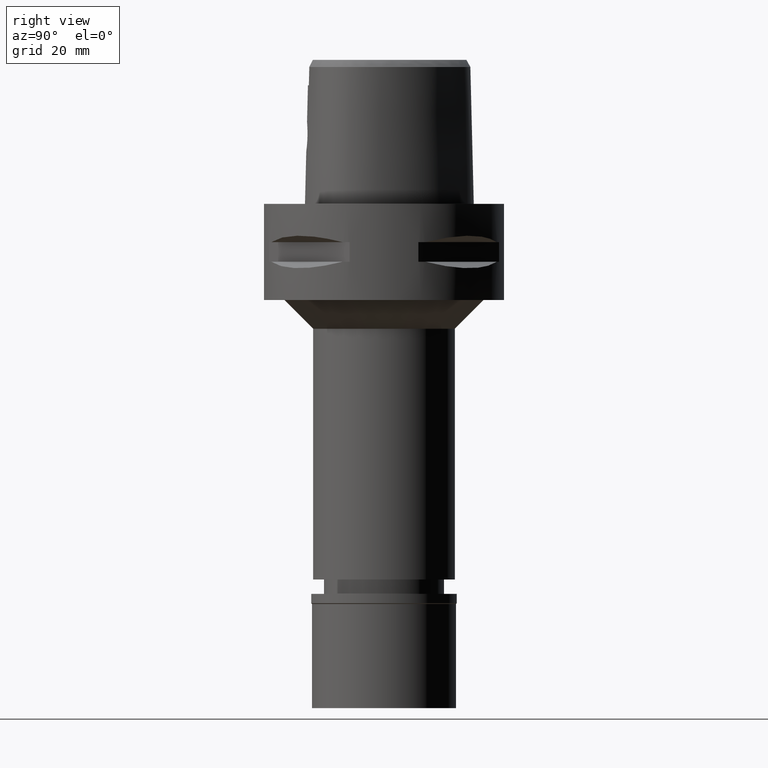
[diagram: clean part render]
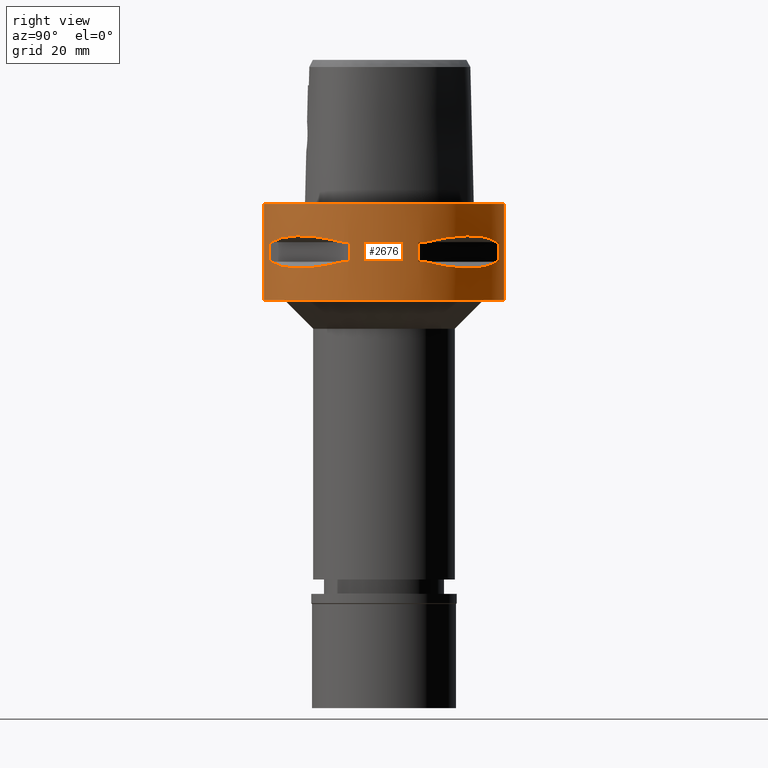
[diagram: same view with one face highlighted and labeled with its STEP entity id]
A machine part, right view. The second image highlights one B-rep face of the part: STEP entity #2676.
In plain terms, the highlighted cylindrical surface (partial cylindrical patch) has radius 25 mm, axis along (0, 0, -1).
Its self-contained STEP definition (entity closure, byte-faithful):
#8 = DIRECTION ( 'NONE',  ( 0.0000000000000000000, 0.0000000000000000000, 1.000000000000000000 ) ) ;
#14 = EDGE_CURVE ( 'NONE', #676, #4847, #1375, .T. ) ;
#29 = CARTESIAN_POINT ( 'NONE',  ( 13.41274673326371314, -21.09754014382099285, -13.03250796600744721 ) ) ;
#43 = DIRECTION ( 'NONE',  ( 0.3458593956303108730, -0.9382863520558295534, 0.0000000000000000000 ) ) ;
#56 = CARTESIAN_POINT ( 'NONE',  ( 18.93096040781557221, -16.42437865151179466, -6.622496303226941272 ) ) ;
#62 = VECTOR ( 'NONE', #1827, 1000.000000000000000 ) ;
#65 = CARTESIAN_POINT ( 'NONE',  ( 17.05439749817592343, 18.30096971347850499, -13.37751056790020598 ) ) ;
#72 = CARTESIAN_POINT ( 'NONE',  ( 8.646484890756999775, -23.45715880140000209, -12.05000000000000071 ) ) ;
#81 = CARTESIAN_POINT ( 'NONE',  ( 16.43106916202457057, -18.92421359264944769, -13.37747608848233760 ) ) ;
#85 = DIRECTION ( 'NONE',  ( 0.9382863520558295534, -0.3458593956303108730, 0.0000000000000000000 ) ) ;
#90 = CARTESIAN_POINT ( 'NONE',  ( 14.85488513038957592, 20.11654071401955335, -13.22076716108393413 ) ) ;
#104 = VERTEX_POINT ( 'NONE', #1064 ) ;
#123 = CARTESIAN_POINT ( 'NONE',  ( 20.95817024473895174, -13.62920640916654591, -13.06397973560678061 ) ) ;
#124 = AXIS2_PLACEMENT_3D ( 'NONE', #4197, #2322, #1981 ) ;
#137 = VERTEX_POINT ( 'NONE', #2071 ) ;
#224 = CARTESIAN_POINT ( 'NONE',  ( 7.159921374230999724, -23.95277699797999915, -12.05000000000000071 ) ) ;
#260 = EDGE_LOOP ( 'NONE', ( #1956, #3991, #3906, #1378, #3875, #4054, #3529, #1908 ) ) ;
#268 = DIRECTION ( 'NONE',  ( 0.0000000000000000000, 0.0000000000000000000, -1.000000000000000000 ) ) ;
#343 = CARTESIAN_POINT ( 'NONE',  ( 21.41803043591995959, 12.89853354823032738, -12.95342092614324869 ) ) ;
#365 = CARTESIAN_POINT ( 'NONE',  ( 15.02698525050126044, 20.06074199764951871, -6.733118915116994785 ) ) ;
#381 = CIRCLE ( 'NONE', #3870, 25.00000000000001066 ) ;
#405 = CARTESIAN_POINT ( 'NONE',  ( 13.24197703503267931, -21.20561591939681634, -13.00691327926098495 ) ) ;
#423 = DIRECTION ( 'NONE',  ( 0.0000000000000000000, 0.0000000000000000000, -1.000000000000000000 ) ) ;
#435 = EDGE_CURVE ( 'NONE', #1183, #104, #2550, .T. ) ;
#436 = CARTESIAN_POINT ( 'NONE',  ( 0.0000000000000000000, 1.282817522107000087E-14, -7.950000000000000178 ) ) ;
#494 = CARTESIAN_POINT ( 'NONE',  ( 8.646484890751999330, 23.45715880140000209, -7.949999999998999201 ) ) ;
#499 = CARTESIAN_POINT ( 'NONE',  ( 20.97251445226583755, -13.60713573003076071, -13.06082541678112641 ) ) ;
#507 = CARTESIAN_POINT ( 'NONE',  ( 13.60713573003037880, 20.97251445226597966, -13.06082541678103404 ) ) ;
#578 = CARTESIAN_POINT ( 'NONE',  ( 0.0000000000000000000, 1.282817522107000087E-14, -12.05000000000000071 ) ) ;
#648 = VERTEX_POINT ( 'NONE', #3684 ) ;
#651 = CARTESIAN_POINT ( 'NONE',  ( 23.45715880140000209, -8.646484890751999330, -7.949999999998999201 ) ) ;
#676 = VERTEX_POINT ( 'NONE', #4369 ) ;
#702 = AXIS2_PLACEMENT_3D ( 'NONE', #712, #3729, #729 ) ;
#712 = CARTESIAN_POINT ( 'NONE',  ( 0.0000000000000000000, 1.282817522107000087E-14, -7.950000000000000178 ) ) ;
#724 = DIRECTION ( 'NONE',  ( 0.0000000000000000000, 0.0000000000000000000, -1.000000000000000000 ) ) ;
#725 = ORIENTED_EDGE ( 'NONE', *, *, #4302, .F. ) ;
#729 = DIRECTION ( 'NONE',  ( 0.3458593956303108730, 0.9382863520558295534, 0.0000000000000000000 ) ) ;
#745 = CARTESIAN_POINT ( 'NONE',  ( 7.159921374230999724, 23.95277699797999915, -7.950000000000000178 ) ) ;
#749 = CARTESIAN_POINT ( 'NONE',  ( 23.95277699797999915, -7.159921374235000080, -12.05000000000000071 ) ) ;
#754 = CARTESIAN_POINT ( 'NONE',  ( 23.13678124604550845, 9.515641234313701347, -12.27403800213050111 ) ) ;
#780 = CIRCLE ( 'NONE', #702, 25.00000000000001066 ) ;
#801 = EDGE_CURVE ( 'NONE', #1183, #137, #1265, .T. ) ;
#825 = ORIENTED_EDGE ( 'NONE', *, *, #4080, .T. ) ;
#843 = VERTEX_POINT ( 'NONE', #2924 ) ;
#897 = CARTESIAN_POINT ( 'NONE',  ( 20.92801700160322298, -13.67544437571097404, -13.07054629644096444 ) ) ;
#979 = DIRECTION ( 'NONE',  ( 0.0000000000000000000, 0.0000000000000000000, -1.000000000000000000 ) ) ;
#1043 = CARTESIAN_POINT ( 'NONE',  ( 18.93096040781554024, 16.42437865151185505, -6.622505547253060953 ) ) ;
#1062 = CARTESIAN_POINT ( 'NONE',  ( 23.95277699797999915, -7.159921374230999724, -7.950000000000000178 ) ) ;
#1064 = CARTESIAN_POINT ( 'NONE',  ( 8.646484890751999330, 23.45715880140000209, -12.05000000000000071 ) ) ;
#1079 = LINE ( 'NONE', #4140, #62 ) ;
#1095 = CIRCLE ( 'NONE', #4903, 24.99999999999999645 ) ;
#1136 = LINE ( 'NONE', #3764, #3955 ) ;
#1159 = CARTESIAN_POINT ( 'NONE',  ( 7.159921374230999724, 23.95277699797999915, -12.05000000000000071 ) ) ;
#1169 = CARTESIAN_POINT ( 'NONE',  ( 15.06560254765663132, -20.02826730455345583, -13.27075471794622885 ) ) ;
#1182 = VECTOR ( 'NONE', #2122, 1000.000000000000000 ) ;
#1183 = VERTEX_POINT ( 'NONE', #2623 ) ;
#1197 = CARTESIAN_POINT ( 'NONE',  ( 18.30096971348435630, -17.05439749817190176, -13.37751056790094850 ) ) ;
#1209 = CARTESIAN_POINT ( 'NONE',  ( 13.90573822668135406, 20.77616787493428774, -13.10257122103294058 ) ) ;
#1219 = CARTESIAN_POINT ( 'NONE',  ( 20.56020460723486565, -14.22535762328174691, -13.14488865845287080 ) ) ;
#1224 = EDGE_CURVE ( 'NONE', #4542, #2383, #1136, .T. ) ;
#1254 = CARTESIAN_POINT ( 'NONE',  ( 21.00321793043583796, 13.55971422200765630, -13.05400030967367897 ) ) ;
#1265 = CIRCLE ( 'NONE', #3012, 25.00000000000001066 ) ;
#1290 = DIRECTION ( 'NONE',  ( 0.0000000000000000000, -1.000000000000000000, 0.0000000000000000000 ) ) ;
#1303 = EDGE_CURVE ( 'NONE', #3513, #137, #3284, .T. ) ;
#1375 = LINE ( 'NONE', #2953, #1182 ) ;
#1378 = ORIENTED_EDGE ( 'NONE', *, *, #3589, .F. ) ;
#1382 = CIRCLE ( 'NONE', #124, 24.99999999999999645 ) ;
#1437 = ORIENTED_EDGE ( 'NONE', *, *, #1868, .F. ) ;
#1444 = CARTESIAN_POINT ( 'NONE',  ( 9.515641234297431694, -23.13678124605150188, -12.27403800212630536 ) ) ;
#1492 = ORIENTED_EDGE ( 'NONE', *, *, #435, .F. ) ;
#1498 = CARTESIAN_POINT ( 'NONE',  ( 22.00752022556849496, -11.99636231264437214, -7.175618606703328517 ) ) ;
#1544 = CARTESIAN_POINT ( 'NONE',  ( 0.0000000000000000000, 1.282817522107000087E-14, -7.950000000000000178 ) ) ;
#1574 = VECTOR ( 'NONE', #4055, 1000.000000000000000 ) ;
#1702 = EDGE_CURVE ( 'NONE', #843, #1943, #3375, .T. ) ;
#1714 = CIRCLE ( 'NONE', #3865, 25.00000000000000000 ) ;
#1742 = DIRECTION ( 'NONE',  ( 0.2863968549694120291, 0.9581110799190402094, 0.0000000000000000000 ) ) ;
#1774 = DIRECTION ( 'NONE',  ( 0.9581110799190402094, -0.2863968549694120291, 0.0000000000000000000 ) ) ;
#1788 = AXIS2_PLACEMENT_3D ( 'NONE', #2253, #2326, #4250 ) ;
#1809 = CARTESIAN_POINT ( 'NONE',  ( 11.99636231264435615, 22.00752022556853404, -7.175618606703328517 ) ) ;
#1827 = DIRECTION ( 'NONE',  ( 0.0000000000000000000, 0.0000000000000000000, -1.000000000000000000 ) ) ;
#1837 = ORIENTED_EDGE ( 'NONE', *, *, #801, .T. ) ;
#1841 = CARTESIAN_POINT ( 'NONE',  ( 13.53433973752400554, -21.01958685664054372, -13.05032380590162333 ) ) ;
#1842 = VERTEX_POINT ( 'NONE', #72 ) ;
#1852 = CARTESIAN_POINT ( 'NONE',  ( 21.20561591939435786, 13.24197703503935486, -13.00691327926270446 ) ) ;
#1867 = CARTESIAN_POINT ( 'NONE',  ( 8.646484890751999330, -23.45715880140000209, -7.949999999998999201 ) ) ;
#1868 = EDGE_CURVE ( 'NONE', #2675, #2776, #1907, .T. ) ;
#1882 = CARTESIAN_POINT ( 'NONE',  ( 8.646484890751999330, 23.45715880140000209, -7.949999999998999201 ) ) ;
#1891 = FACE_BOUND ( 'NONE', #260, .T. ) ;
#1907 = LINE ( 'NONE', #1159, #2098 ) ;
#1908 = ORIENTED_EDGE ( 'NONE', *, *, #2882, .T. ) ;
#1912 = CARTESIAN_POINT ( 'NONE',  ( 12.89853354821786624, -21.41803043592453548, -12.95342092614003349 ) ) ;
#1918 = CARTESIAN_POINT ( 'NONE',  ( 22.82437128822188654, -10.36318218122986856, -7.507495686399606960 ) ) ;
#1943 = VERTEX_POINT ( 'NONE', #494 ) ;
#1956 = ORIENTED_EDGE ( 'NONE', *, *, #4419, .T. ) ;
#1981 = DIRECTION ( 'NONE',  ( 0.9581110799190402094, 0.2863968549694120291, 0.0000000000000000000 ) ) ;
#1986 = EDGE_CURVE ( 'NONE', #1842, #4847, #2733, .T. ) ;
#1995 = CARTESIAN_POINT ( 'NONE',  ( 13.74471461761685198, 20.88268233906084248, -13.08031795579737455 ) ) ;
#2068 = EDGE_CURVE ( 'NONE', #3513, #843, #1382, .T. ) ;
#2071 = CARTESIAN_POINT ( 'NONE',  ( 23.95277699797999915, 7.159921374230999724, -12.05000000000000071 ) ) ;
#2093 = VERTEX_POINT ( 'NONE', #3254 ) ;
#2098 = VECTOR ( 'NONE', #4667, 1000.000000000000000 ) ;
#2122 = DIRECTION ( 'NONE',  ( 0.0000000000000000000, 0.0000000000000000000, -1.000000000000000000 ) ) ;
#2191 = AXIS2_PLACEMENT_3D ( 'NONE', #3658, #268, #1774 ) ;
#2205 = CARTESIAN_POINT ( 'NONE',  ( 23.45715880140000209, -8.646484890751999330, -12.05000000000000071 ) ) ;
#2213 = CARTESIAN_POINT ( 'NONE',  ( 8.646484890756999775, -23.45715880140000209, -12.05000000000000071 ) ) ;
#2225 = CARTESIAN_POINT ( 'NONE',  ( 22.58788056560981516, 10.78455809748034788, -12.56798337783676267 ) ) ;
#2231 = DIRECTION ( 'NONE',  ( 0.2863968549694120291, -0.9581110799190402094, 0.0000000000000000000 ) ) ;
#2253 = CARTESIAN_POINT ( 'NONE',  ( 0.0000000000000000000, 1.282817522107000087E-14, 4.750000000000000000 ) ) ;
#2300 = CARTESIAN_POINT ( 'NONE',  ( 0.0000000000000000000, 1.282817522107000087E-14, -12.05000000000000071 ) ) ;
#2317 = CARTESIAN_POINT ( 'NONE',  ( 21.01958685664017068, 13.53433973752500918, -13.05032380590188446 ) ) ;
#2322 = DIRECTION ( 'NONE',  ( 0.0000000000000000000, 0.0000000000000000000, 1.000000000000000000 ) ) ;
#2326 = DIRECTION ( 'NONE',  ( 0.0000000000000000000, 0.0000000000000000000, -1.000000000000000000 ) ) ;
#2338 = B_SPLINE_CURVE_WITH_KNOTS ( 'NONE', 3,
 ( #1867, #3704, #2880, #2725, #3830, #56, #3499, #1498, #1918, #4611 ),
 .UNSPECIFIED., .F., .F.,
 ( 4, 2, 2, 2, 4 ),
 ( 0.0000000000000000000, 0.2500000000000000000, 0.5000000000000000000, 0.7500000000000000000, 1.000000000000000000 ),
 .UNSPECIFIED. ) ;
#2350 = VERTEX_POINT ( 'NONE', #2415 ) ;
#2353 = AXIS2_PLACEMENT_3D ( 'NONE', #3971, #4700, #1290 ) ;
#2357 = CARTESIAN_POINT ( 'NONE',  ( 20.77616787493668937, -13.90573822667970916, -13.10257122103325145 ) ) ;
#2358 = ORIENTED_EDGE ( 'NONE', *, *, #4306, .T. ) ;
#2383 = VERTEX_POINT ( 'NONE', #1062 ) ;
#2415 = CARTESIAN_POINT ( 'NONE',  ( 0.0000000000000000000, -25.00000000000000000, -20.00000000000000000 ) ) ;
#2426 = CARTESIAN_POINT ( 'NONE',  ( 19.18226349639588690, -16.07509500018327131, -13.33749867752016449 ) ) ;
#2437 = EDGE_CURVE ( 'NONE', #4542, #3858, #4338, .T. ) ;
#2490 = DIRECTION ( 'NONE',  ( 0.9382863520558295534, 0.3458593956303108730, 0.0000000000000000000 ) ) ;
#2547 = CARTESIAN_POINT ( 'NONE',  ( 16.42437865151178045, 18.93096040781560063, -6.622496303226941272 ) ) ;
#2550 = B_SPLINE_CURVE_WITH_KNOTS ( 'NONE', 3,
 ( #3343, #754, #2225, #3737, #343, #1852, #3362, #3840, #2317, #1254, #3561, #3928, #65, #3886, #90, #4637, #1209, #1995, #3460, #2765, #507, #3152, #4240, #4685 ),
 .UNSPECIFIED., .F., .F.,
 ( 4, 1, 1, 1, 1, 1, 2, 2, 2, 1, 1, 1, 1, 1, 2, 2, 4 ),
 ( 0.0000000000000000000, 0.1249999999999982236, 0.1874999999999974465, 0.2187499999999970302, 0.2343749999999969469, 0.2421874999999968081, 0.2460937499999968359, 0.2499999999999968914, 0.4999999999999973355, 0.6249999999999973355, 0.6874999999999976685, 0.7187499999999978906, 0.7343749999999980016, 0.7421874999999980016, 0.7460937499999978906, 0.7499999999999978906, 1.000000000000000000 ),
 .UNSPECIFIED. ) ;
#2623 = CARTESIAN_POINT ( 'NONE',  ( 23.45715880140000209, 8.646484890756999775, -12.05000000000000071 ) ) ;
#2639 = CARTESIAN_POINT ( 'NONE',  ( 22.00754773658079344, 11.99631184311074428, -7.175632472892017333 ) ) ;
#2675 = VERTEX_POINT ( 'NONE', #3443 ) ;
#2676 = ADVANCED_FACE ( 'NONE', ( #3745, #1891, #4203 ), #4604, .T. ) ;
#2710 = EDGE_LOOP ( 'NONE', ( #3087, #3740, #3869, #725 ) ) ;
#2725 = CARTESIAN_POINT ( 'NONE',  ( 15.02693924547570070, -20.06077645874711379, -6.733132781305681824 ) ) ;
#2733 = CIRCLE ( 'NONE', #3528, 25.00000000000001066 ) ;
#2765 = CARTESIAN_POINT ( 'NONE',  ( 13.62920640916679993, 20.95817024473859291, -13.06397973560673265 ) ) ;
#2776 = VERTEX_POINT ( 'NONE', #745 ) ;
#2794 = CARTESIAN_POINT ( 'NONE',  ( 23.45715880140000209, -8.646484890751999330, -12.05000000000000071 ) ) ;
#2816 = CIRCLE ( 'NONE', #2353, 25.00000000000000000 ) ;
#2869 = CARTESIAN_POINT ( 'NONE',  ( 0.0000000000000000000, -25.00000000000000000, 0.0000000000000000000 ) ) ;
#2880 = CARTESIAN_POINT ( 'NONE',  ( 11.99631184311069099, -22.00754773658079344, -7.175632472892017333 ) ) ;
#2882 = EDGE_CURVE ( 'NONE', #648, #3372, #2338, .T. ) ;
#2924 = CARTESIAN_POINT ( 'NONE',  ( 23.45715880140000209, 8.646484890751999330, -7.949999999998999201 ) ) ;
#2928 = CARTESIAN_POINT ( 'NONE',  ( 23.95277699797999915, 7.159921374230999724, -7.950000000000000178 ) ) ;
#2953 = CARTESIAN_POINT ( 'NONE',  ( 7.159921374230999724, -23.95277699797999915, -7.950000000000000178 ) ) ;
#2958 = CARTESIAN_POINT ( 'NONE',  ( 20.06077645874710313, 15.02693924547574866, -6.733132781305681824 ) ) ;
#2962 = EDGE_CURVE ( 'NONE', #2350, #2093, #2816, .T. ) ;
#2986 = DIRECTION ( 'NONE',  ( 0.0000000000000000000, 0.0000000000000000000, 1.000000000000000000 ) ) ;
#3012 = AXIS2_PLACEMENT_3D ( 'NONE', #3230, #979, #2490 ) ;
#3029 = CARTESIAN_POINT ( 'NONE',  ( 23.45715880140000209, 8.646484890751999330, -7.949999999998999201 ) ) ;
#3057 = CARTESIAN_POINT ( 'NONE',  ( 13.55971422200820520, -21.00321793043535479, -13.05400030967370206 ) ) ;
#3073 = CIRCLE ( 'NONE', #3214, 24.99999999999999645 ) ;
#3087 = ORIENTED_EDGE ( 'NONE', *, *, #3553, .T. ) ;
#3152 = CARTESIAN_POINT ( 'NONE',  ( 12.03062603423778754, 21.99328990739221013, -12.83394786307672675 ) ) ;
#3164 = CARTESIAN_POINT ( 'NONE',  ( 20.88268233906207172, -13.74471461761599400, -13.08031795579753087 ) ) ;
#3214 = AXIS2_PLACEMENT_3D ( 'NONE', #1544, #2986, #2231 ) ;
#3230 = CARTESIAN_POINT ( 'NONE',  ( 0.0000000000000000000, 1.282817522107000087E-14, -12.05000000000000071 ) ) ;
#3254 = CARTESIAN_POINT ( 'NONE',  ( 0.0000000000000000000, 25.00000000000000000, -20.00000000000000000 ) ) ;
#3256 = ORIENTED_EDGE ( 'NONE', *, *, #1303, .F. ) ;
#3284 = LINE ( 'NONE', #2928, #3719 ) ;
#3331 = CARTESIAN_POINT ( 'NONE',  ( 10.78455809745186755, -22.58788056562029922, -12.56798337782941566 ) ) ;
#3343 = CARTESIAN_POINT ( 'NONE',  ( 23.45715880140000209, 8.646484890756999775, -12.05000000000000071 ) ) ;
#3362 = CARTESIAN_POINT ( 'NONE',  ( 21.09754014381971388, 13.41274673326716282, -13.03250796600833716 ) ) ;
#3372 = VERTEX_POINT ( 'NONE', #651 ) ;
#3375 = B_SPLINE_CURVE_WITH_KNOTS ( 'NONE', 3,
 ( #3029, #4448, #2639, #2958, #1043, #2547, #365, #1809, #4885, #1882 ),
 .UNSPECIFIED., .F., .F.,
 ( 4, 2, 2, 2, 4 ),
 ( 0.0000000000000000000, 0.2500000000000000000, 0.5000000000000000000, 0.7500000000000000000, 1.000000000000000000 ),
 .UNSPECIFIED. ) ;
#3396 = CARTESIAN_POINT ( 'NONE',  ( 23.95277699797999915, 7.159921374235000080, -7.950000000000000178 ) ) ;
#3443 = CARTESIAN_POINT ( 'NONE',  ( 7.159921374235000080, 23.95277699797999915, -12.05000000000000071 ) ) ;
#3460 = CARTESIAN_POINT ( 'NONE',  ( 13.67544437571146609, 20.92801700160250533, -13.07054629644086674 ) ) ;
#3470 = DIRECTION ( 'NONE',  ( 0.0000000000000000000, 0.0000000000000000000, 1.000000000000000000 ) ) ;
#3475 = EDGE_CURVE ( 'NONE', #676, #648, #3073, .T. ) ;
#3499 = CARTESIAN_POINT ( 'NONE',  ( 20.06074199764950095, -15.02698525050125156, -6.733118915116994785 ) ) ;
#3513 = VERTEX_POINT ( 'NONE', #3396 ) ;
#3528 = AXIS2_PLACEMENT_3D ( 'NONE', #2300, #423, #43 ) ;
#3529 = ORIENTED_EDGE ( 'NONE', *, *, #3475, .T. ) ;
#3553 = EDGE_CURVE ( 'NONE', #4887, #4344, #1714, .T. ) ;
#3561 = CARTESIAN_POINT ( 'NONE',  ( 20.02826730452214932, 15.06560254769159712, -13.27075471794772277 ) ) ;
#3589 = EDGE_CURVE ( 'NONE', #1842, #3858, #4829, .T. ) ;
#3627 = DIRECTION ( 'NONE',  ( 0.0000000000000000000, 0.0000000000000000000, -1.000000000000000000 ) ) ;
#3642 = LINE ( 'NONE', #2869, #1574 ) ;
#3658 = CARTESIAN_POINT ( 'NONE',  ( 0.0000000000000000000, 1.282817522107000087E-14, -12.05000000000000071 ) ) ;
#3684 = CARTESIAN_POINT ( 'NONE',  ( 8.646484890751999330, -23.45715880140000209, -7.949999999998999201 ) ) ;
#3704 = CARTESIAN_POINT ( 'NONE',  ( 10.36314631860608593, -22.82438450745432945, -7.507504930525397135 ) ) ;
#3719 = VECTOR ( 'NONE', #4445, 1000.000000000000000 ) ;
#3723 = CARTESIAN_POINT ( 'NONE',  ( 13.48572973711064193, -21.05082155772163688, -13.04323036965292637 ) ) ;
#3729 = DIRECTION ( 'NONE',  ( 0.0000000000000000000, 0.0000000000000000000, 1.000000000000000000 ) ) ;
#3737 = CARTESIAN_POINT ( 'NONE',  ( 21.82791133047632215, 12.20403021319857828, -12.83722430139150994 ) ) ;
#3740 = ORIENTED_EDGE ( 'NONE', *, *, #4753, .T. ) ;
#3745 = FACE_OUTER_BOUND ( 'NONE', #2710, .T. ) ;
#3764 = CARTESIAN_POINT ( 'NONE',  ( 23.95277699797999915, -7.159921374230999724, -12.05000000000000071 ) ) ;
#3799 = CARTESIAN_POINT ( 'NONE',  ( 0.0000000000000000000, 1.282817522107000087E-14, 0.0000000000000000000 ) ) ;
#3830 = CARTESIAN_POINT ( 'NONE',  ( 16.42437865151175558, -18.93096040781560774, -6.622505547253060953 ) ) ;
#3840 = CARTESIAN_POINT ( 'NONE',  ( 21.05082155772089436, 13.48572973711263323, -13.04323036965343618 ) ) ;
#3858 = VERTEX_POINT ( 'NONE', #2205 ) ;
#3865 = AXIS2_PLACEMENT_3D ( 'NONE', #3799, #724, #4575 ) ;
#3869 = ORIENTED_EDGE ( 'NONE', *, *, #2962, .T. ) ;
#3870 = AXIS2_PLACEMENT_3D ( 'NONE', #436, #8, #85 ) ;
#3875 = ORIENTED_EDGE ( 'NONE', *, *, #1986, .T. ) ;
#3886 = CARTESIAN_POINT ( 'NONE',  ( 16.07509500019029502, 19.18226349638565509, -13.33749867751885532 ) ) ;
#3898 = CARTESIAN_POINT ( 'NONE',  ( 22.81626994452193458, -10.38516041956038727, -12.49816953211166037 ) ) ;
#3906 = ORIENTED_EDGE ( 'NONE', *, *, #2437, .T. ) ;
#3928 = CARTESIAN_POINT ( 'NONE',  ( 18.92421359264142211, 16.43106916203626611, -13.37747608848383329 ) ) ;
#3942 = CARTESIAN_POINT ( 'NONE',  ( 21.99328990740119139, -12.03062603421341770, -12.83394786307044022 ) ) ;
#3955 = VECTOR ( 'NONE', #3470, 1000.000000000000000 ) ;
#3971 = CARTESIAN_POINT ( 'NONE',  ( 0.0000000000000000000, 1.282817522107000087E-14, -20.00000000000000000 ) ) ;
#3991 = ORIENTED_EDGE ( 'NONE', *, *, #1224, .F. ) ;
#4054 = ORIENTED_EDGE ( 'NONE', *, *, #14, .F. ) ;
#4055 = DIRECTION ( 'NONE',  ( 0.0000000000000000000, 0.0000000000000000000, -1.000000000000000000 ) ) ;
#4080 = EDGE_CURVE ( 'NONE', #2675, #104, #1095, .T. ) ;
#4140 = CARTESIAN_POINT ( 'NONE',  ( 0.0000000000000000000, 25.00000000000000000, 0.0000000000000000000 ) ) ;
#4197 = CARTESIAN_POINT ( 'NONE',  ( 0.0000000000000000000, 1.282817522107000087E-14, -7.950000000000000178 ) ) ;
#4203 = FACE_BOUND ( 'NONE', #4830, .T. ) ;
#4229 = CARTESIAN_POINT ( 'NONE',  ( 20.11654071402723432, -14.85488513038430192, -13.22076716108491290 ) ) ;
#4240 = CARTESIAN_POINT ( 'NONE',  ( 10.38516041958474645, 22.81626994451295332, -12.49816953211793802 ) ) ;
#4250 = DIRECTION ( 'NONE',  ( 0.0000000000000000000, -1.000000000000000000, 0.0000000000000000000 ) ) ;
#4302 = EDGE_CURVE ( 'NONE', #4887, #2093, #1079, .T. ) ;
#4306 = EDGE_CURVE ( 'NONE', #1943, #2776, #780, .T. ) ;
#4338 = CIRCLE ( 'NONE', #2191, 24.99999999999999645 ) ;
#4344 = VERTEX_POINT ( 'NONE', #4860 ) ;
#4369 = CARTESIAN_POINT ( 'NONE',  ( 7.159921374235000080, -23.95277699797999915, -7.950000000000000178 ) ) ;
#4419 = EDGE_CURVE ( 'NONE', #3372, #2383, #381, .T. ) ;
#4425 = CARTESIAN_POINT ( 'NONE',  ( 0.0000000000000000000, 25.00000000000000000, 0.0000000000000000000 ) ) ;
#4445 = DIRECTION ( 'NONE',  ( 0.0000000000000000000, 0.0000000000000000000, -1.000000000000000000 ) ) ;
#4448 = CARTESIAN_POINT ( 'NONE',  ( 22.82438450745431524, 10.36314631860615876, -7.507504930525397135 ) ) ;
#4542 = VERTEX_POINT ( 'NONE', #749 ) ;
#4575 = DIRECTION ( 'NONE',  ( 0.0000000000000000000, 1.000000000000000000, 0.0000000000000000000 ) ) ;
#4602 = ORIENTED_EDGE ( 'NONE', *, *, #2068, .T. ) ;
#4604 = CYLINDRICAL_SURFACE ( 'NONE', #1788, 25.00000000000000000 ) ;
#4611 = CARTESIAN_POINT ( 'NONE',  ( 23.45715880140000209, -8.646484890751999330, -7.949999999998999201 ) ) ;
#4624 = ORIENTED_EDGE ( 'NONE', *, *, #1702, .T. ) ;
#4637 = CARTESIAN_POINT ( 'NONE',  ( 14.22535762328483067, 20.56020460723039278, -13.14488865845230592 ) ) ;
#4667 = DIRECTION ( 'NONE',  ( 0.0000000000000000000, 0.0000000000000000000, 1.000000000000000000 ) ) ;
#4685 = CARTESIAN_POINT ( 'NONE',  ( 8.646484890751999330, 23.45715880140000209, -12.05000000000000071 ) ) ;
#4700 = DIRECTION ( 'NONE',  ( 0.0000000000000000000, 0.0000000000000000000, 1.000000000000000000 ) ) ;
#4753 = EDGE_CURVE ( 'NONE', #4344, #2350, #3642, .T. ) ;
#4829 = B_SPLINE_CURVE_WITH_KNOTS ( 'NONE', 3,
 ( #2213, #1444, #3331, #4852, #1912, #405, #29, #3723, #1841, #3057, #1169, #81, #1197, #2426, #4229, #1219, #2357, #3164, #897, #123, #499, #3942, #3898, #2794 ),
 .UNSPECIFIED., .F., .F.,
 ( 4, 1, 1, 1, 1, 1, 2, 2, 2, 1, 1, 1, 1, 1, 2, 2, 4 ),
 ( 0.0000000000000000000, 0.1250000000000068834, 0.1875000000000101308, 0.2187500000000117406, 0.2343750000000125733, 0.2421875000000129341, 0.2460937500000130174, 0.2500000000000131006, 0.5000000000000111022, 0.6250000000000101030, 0.6875000000000099920, 0.7187500000000099920, 0.7343750000000099920, 0.7421875000000098810, 0.7460937500000098810, 0.7500000000000098810, 1.000000000000000000 ),
 .UNSPECIFIED. ) ;
#4830 = EDGE_LOOP ( 'NONE', ( #2358, #1437, #825, #1492, #1837, #3256, #4602, #4624 ) ) ;
#4847 = VERTEX_POINT ( 'NONE', #224 ) ;
#4852 = CARTESIAN_POINT ( 'NONE',  ( 12.20403021317722292, -21.82791133048418786, -12.83722430138600323 ) ) ;
#4860 = CARTESIAN_POINT ( 'NONE',  ( 0.0000000000000000000, -25.00000000000000000, 0.0000000000000000000 ) ) ;
#4885 = CARTESIAN_POINT ( 'NONE',  ( 10.36318218122983481, 22.82437128822192207, -7.507495686399606960 ) ) ;
#4887 = VERTEX_POINT ( 'NONE', #4425 ) ;
#4903 = AXIS2_PLACEMENT_3D ( 'NONE', #578, #3627, #1742 ) ;